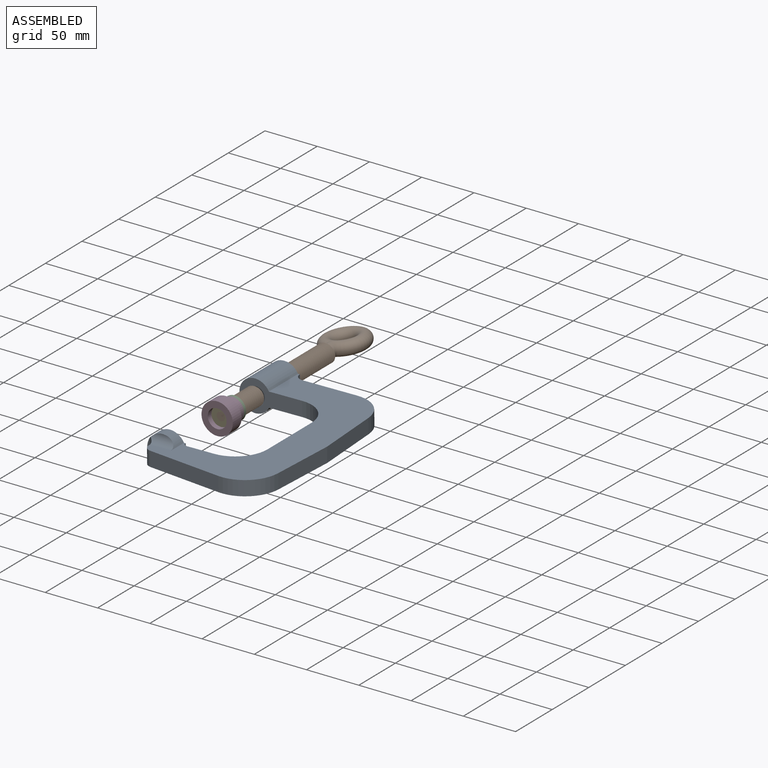
[diagram: assembled view]
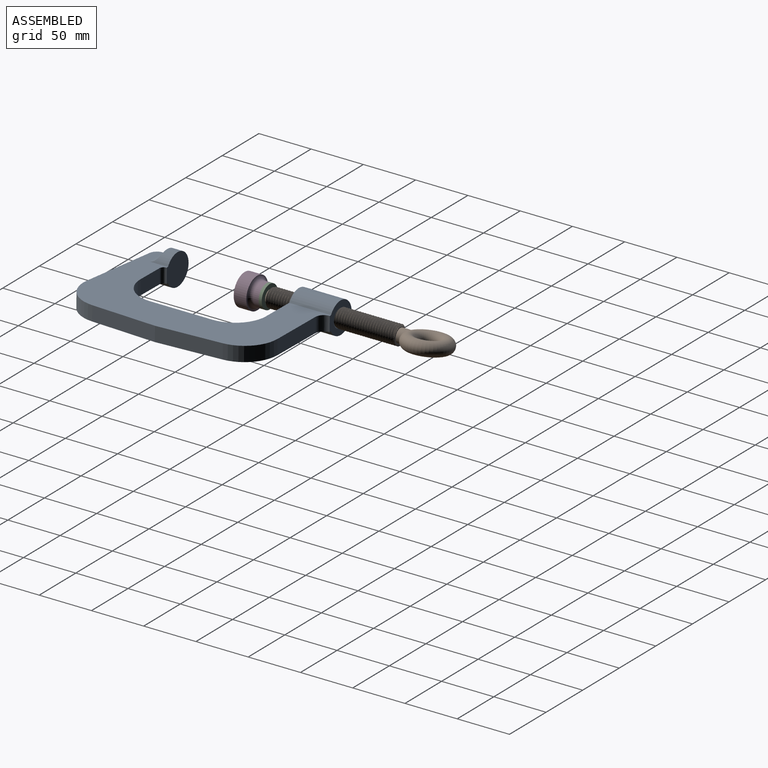
[diagram: assembled view, second angle]
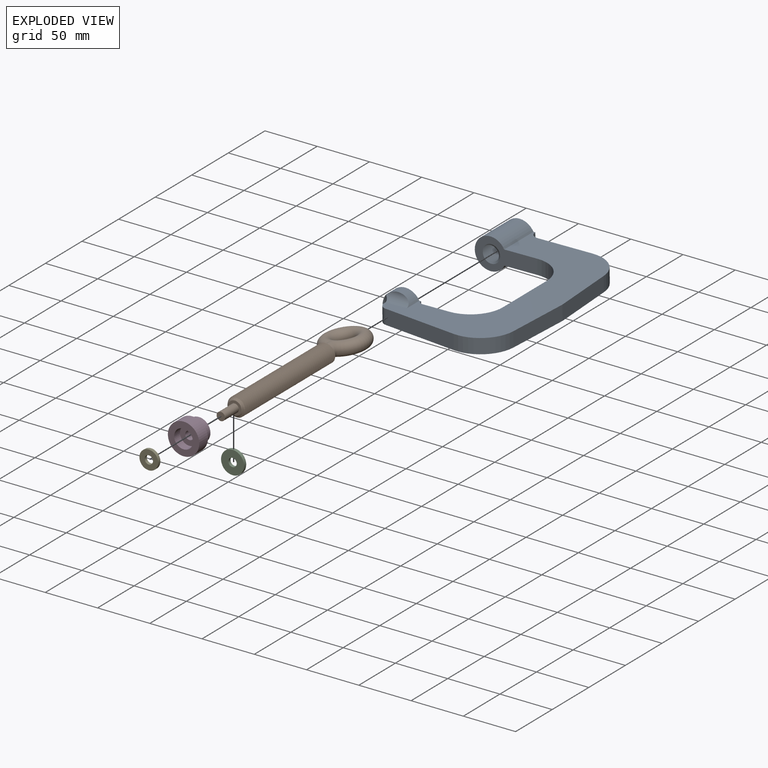
[diagram: exploded view]
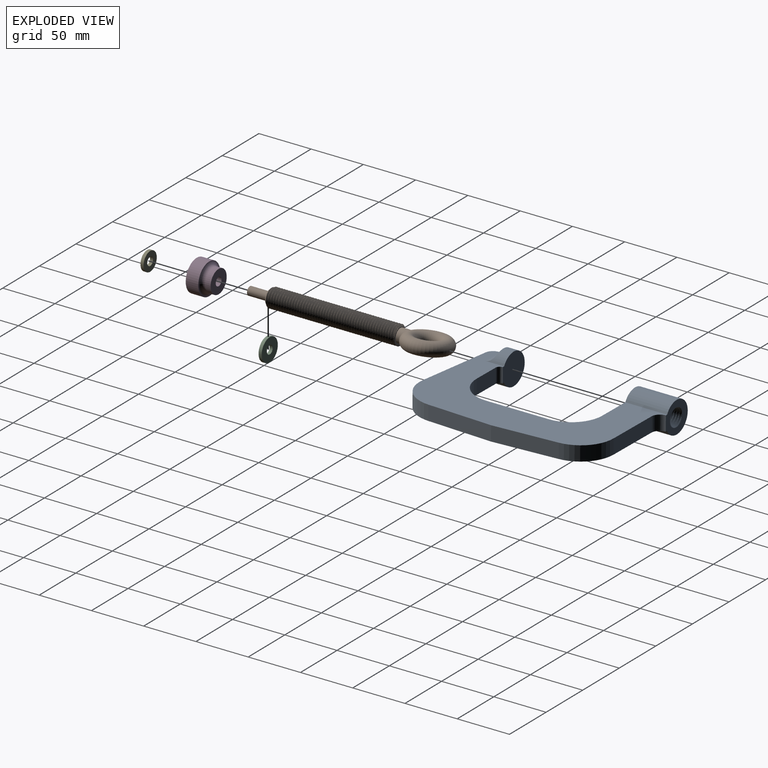
[diagram: exploded view, second angle]
ASSEMBLY  parts=5 mates=7
PART A: 26 faces, bbox 127.1x194.8x31.1 mm
  f0: cylinder r=15mm len=30mm, axis (0,1,0), area 973.5mm2, adj f5,f6,f7,f8,f24,f25
  f1: cylinder r=15mm len=40mm, axis (0,1,0), area 3187.3mm2, adj f3,f4,f7,f8
  f2: cylinder r=8mm len=14mm, axis (0,0,-1), area 168.5mm2, adj f6,f7,f8,f14
  f3: plane 61.09x31.09mm, normal (0,-1,0), area 911.6mm2, adj f1,f7,f8,f9,f21,f22,f23
  f4: plane 31.1x31.1mm, normal (0,1,0), area 491.6mm2, adj f1,f7,f8,f20,f21,f22,f23
  f5: plane 30x30mm, normal (0,1,0), area 714.8mm2, adj f0,f7,f8,f13
  f6: cylinder r=8mm len=21.21mm, axis (0,0,-1), area 206.8mm2, adj f0,f2,f7,f8,f24,f25
  f7: plane 192.73x118.03mm, normal (0,0,-1), area 10128.8mm2, adj f0,f1,f2,f3,f4,f5,f6,f9
  f8: plane 192.73x118.03mm, normal (0,0,1), area 10128.8mm2, adj f0,f1,f2,f3,f4,f5,f6,f9
  f9: cylinder r=30mm len=30mm, axis (0,0,-1), area 659.7mm2, adj f3,f7,f8,f10
  f10: plane 60x14mm, normal (-1,0,0), area 840mm2, adj f7,f8,f9,f11
  f11: cylinder r=30mm len=30mm, axis (0,0,-1), area 659.7mm2, adj f7,f8,f10,f12
  f12: plane 26x14mm, normal (0,1,0), area 364mm2, adj f7,f8,f11,f13
  f13: cylinder r=4mm len=14mm, axis (0,0,-1), area 88mm2, adj f5,f7,f8,f12
  f14: plane 71.71x14mm, normal (-0.13,-0.99,0), area 1012.7mm2, adj f2,f7,f8,f15
  f15: cylinder r=32mm len=36.15mm, axis (0,0,-1), area 739.5mm2, adj f7,f8,f14,f16
  f16: plane 62.38x14mm, normal (1,-0.05,0), area 874.5mm2, adj f7,f8,f15,f17
  f17: plane 62.08x14mm, normal (1,0.07,0), area 871mm2, adj f7,f8,f16,f18
  f18: cylinder r=32mm len=31.93mm, axis (0,0,-1), area 674.5mm2, adj f7,f8,f17,f19
  f19: plane 52.02x14mm, normal (0,1,0), area 728.3mm2, adj f7,f8,f18,f20
  f20: cylinder r=8mm len=14mm, axis (0,0,-1), area 175.9mm2, adj f4,f7,f8,f19
  f21: bspline ~41.89x16.58mm, area 1676.5mm2, adj f3,f4,f22,f23
  f22: bspline ~41.22x17.87mm, area 690.8mm2, adj f3,f4,f21,f23
  f23: bspline ~42.2x19.05mm, area 1678.2mm2, adj f3,f4,f21,f22
  f24: cylinder r=8mm len=23.87mm, axis (1,0,0), area 177.7mm2, adj f0,f6,f7
  f25: cylinder r=8mm len=23.87mm, axis (-1,0,0), area 177.7mm2, adj f0,f6,f8
PART B: 11 faces, bbox 50x195.7x19.3 mm
  f0: torus R=16mm, axis (0,0,-1), area 3935mm2, adj f1
  f1: cylinder r=6.5mm len=13mm, axis (0,-1,0), area 295.3mm2, adj f0,f5
  f2: cylinder r=4mm len=19mm, axis (0,-1,0), area 477.5mm2, adj f6,f7
  f3: cone r=6.5mm half-angle=45deg, axis (0,1,0), area 96.7mm2, adj f4,f7,f8,f9,f10
  f4: cylinder r=9mm len=122.5mm, axis (0,-1,0), area 168.2mm2, adj f3,f5,f9,f10
  f5: plane 17.36x17.33mm, normal (0,1,0), area 68.3mm2, adj f1,f4,f8,f9,f10
  f6: plane 8x8mm, normal (0,-1,0), area 50.3mm2, adj f2
  f7: plane 13x13mm, normal (0,-1,0), area 82.5mm2, adj f2,f3
  f8: bspline ~124.9x14.21mm, area 668.4mm2, adj f3,f5,f9,f10
  f9: bspline ~125.68x20.78mm, area 5481.3mm2, adj f3,f4,f5,f8
  f10: bspline ~126.93x20.78mm, area 5470.5mm2, adj f3,f4,f5,f8
PART C: 4 faces, bbox 22x3x22 mm
  f0: cylinder r=4mm len=8mm, axis (0,-1,0), area 75.4mm2, adj f2,f3
  f1: cylinder r=11mm len=22mm, axis (0,-1,0), area 207.3mm2, adj f2,f3
  f2: plane 22x22mm, normal (0,1,0), area 329.9mm2, adj f0,f1
  f3: plane 22x22mm, normal (0,-1,0), area 329.9mm2, adj f0,f1
PART D: 8 faces, bbox 32.5x21x32.5 mm
  f0: torus R=15mm, axis (0,-1,0), area 491.6mm2, adj f1,f4
  f1: cylinder r=15mm len=30mm, axis (0,-1,0), area 1131mm2, adj f0,f7
  f2: cylinder r=9mm len=18mm, axis (0,-1,0), area 452.4mm2, adj f6,f7
  f3: cylinder r=4mm len=13mm, axis (0,-1,0), area 326.7mm2, adj f5,f6
  f4: cylinder r=11mm len=22mm, axis (0,-1,0), area 345.6mm2, adj f0,f5
  f5: plane 22x22mm, normal (0,1,0), area 329.9mm2, adj f3,f4
  f6: plane 18x18mm, normal (0,-1,0), area 204.2mm2, adj f2,f3
  f7: plane 30x30mm, normal (0,-1,0), area 452.4mm2, adj f1,f2
PART E: 4 faces, bbox 18x3x18 mm
  f0: cylinder r=4mm len=8mm, axis (0,-1,0), area 75.4mm2, adj f2,f3
  f1: cylinder r=9mm len=18mm, axis (0,-1,0), area 169.6mm2, adj f2,f3
  f2: plane 18x18mm, normal (0,1,0), area 204.2mm2, adj f0,f1
  f3: plane 18x18mm, normal (0,-1,0), area 204.2mm2, adj f0,f1
PLACE A rot(axis=(0,-1,0),0.8deg) t=(-13.43,-175.5,85.53)mm fixed
PLACE B rot(axis=(0,-1,0),11.5deg) t=(1.57,-262.35,85.75)mm
PLACE C rot(axis=(0,1,0),168.5deg) t=(1.57,-246.35,85.75)mm
PLACE D rot(axis=(0,1,0),78.5deg) t=(1.57,-267.35,85.75)mm
PLACE E rot(axis=(0,1,0),78.5deg) t=(1.57,-262.35,85.75)mm
MATE slider C.f0 <-> B.f1  axis (0,1,0) through (1.57,-243.35,85.75)mm
MATE fastened D.f0 <-> C.f0  axis (0,1,0) through (1.57,-246.35,85.75)mm
MATE cylindrical B.f1 <-> A.f0  axis (0,-1,0) through (1.57,-252.85,85.75)mm
MATE fastened E.f0 <-> D.f0  axis (0,1,0) through (1.57,-259.35,85.75)mm
MATE slider E.f0 <-> D.f0  axis (0,1,0) through (1.57,-259.35,85.75)mm
MATE slider D.f0 <-> C.f0  axis (0,1,0) through (1.57,-246.35,85.75)mm
MATE fastened C.f0 <-> B.f1  axis (0,1,0) through (1.57,-243.35,85.75)mm
